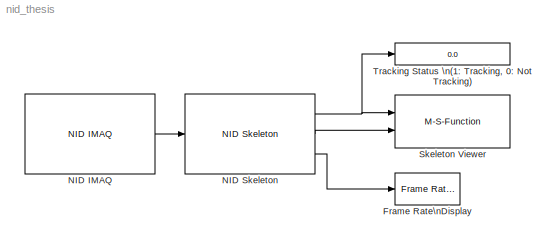
MODEL nid_thesis
KIND model
BLOCK [Reference] Frame Rate\nDisplay  REF=visionsinks/Frame Rate\nDisplay
  Ports = [1]
  SID = 115
  SourceBlock = visionsinks/Frame Rate\nDisplay
  SourceType = Frame Rate Display
  UpdateRate = 10
BLOCK [Reference] NID IMAQ  REF=nid_lib/NID IMAQ
  Ports = [0, 1]
  SID = 158
  SourceBlock = nid_lib/NID IMAQ
  SourceType = NID IMAQ
  angle = 0
  angle_input = off
  angle_read = off
  imaq_depth = off
  imaq_image = off
  imaq_ir = off
  imaq_motion = off
  imaq_sample_time = 1/30
  imaq_skeleton = on
  infer_skeleton = on
  mirror_image = off
  near_mode = off
  needPsiPose = off
  res_fps = VGA (640x480): 30 FPS
  seated_mode = off
  skeleton_smooth = [0.5 0.5 0.5 0.05 0.04]
  view_point = on
BLOCK [Reference] NID Skeleton  REF=nid_lib/NID Skeleton
  Ports = [1, 3]
  SID = 85
  SourceBlock = nid_lib/NID Skeleton
  SourceType = NID Skeleton
  conv_XYZ_RW = on
  num_of_skeleton_tracking = 1
  viewer = on
BLOCK [M-S-Function] Skeleton Viewer
  FunctionName = skeleton_viewer
  Ports = [2]
  SID = 110
BLOCK [Display] Tracking Status \n(1: Tracking, 0: Not Tracking)
  Decimation = 1
  Lockdown = off
  Ports = [1]
  SID = 146
LINE NID IMAQ:1 -> NID Skeleton:1
NET NID Skeleton:1 -> Skeleton Viewer:1, Tracking Status \n(1: Tracking, 0: Not Tracking):1
LINE NID Skeleton:2 -> Skeleton Viewer:2
LINE NID Skeleton:3 -> Frame Rate\nDisplay:1
note: NET lines group one-source signal fan-out (src -> all destinations, sorted); 1:1 wires keep LINE
